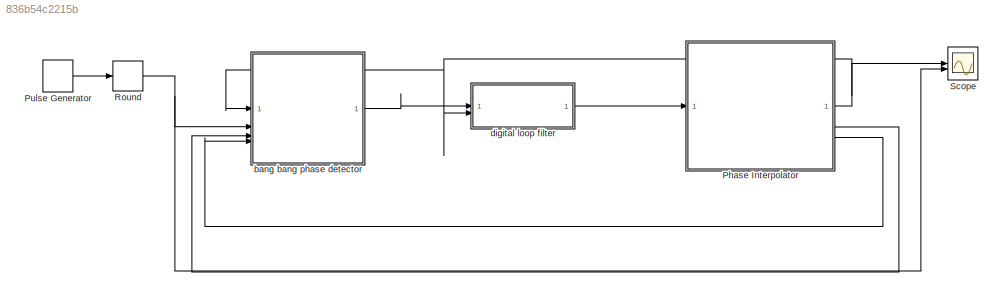
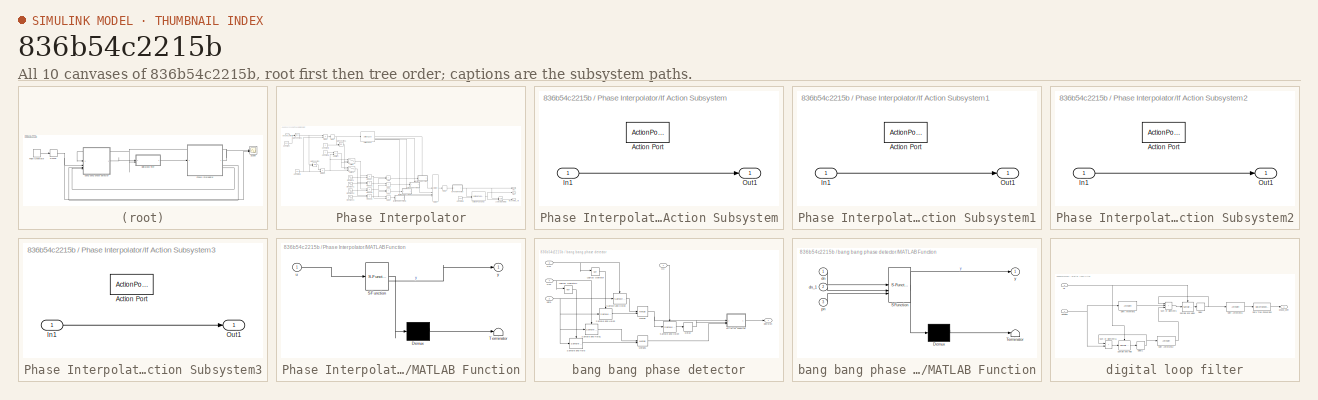
[diagram: thumbnail index - all 10 canvases of the model, root first then tree order]
MODEL slx_836b54c2215b
KIND model
CONFIG AbsTol = auto
CONFIG EnableMultiTasking = off
CONFIG FixedStep = auto
CONFIG MaxStep = auto
CONFIG MinStep = auto
CONFIG RelTol = 1e-3
CONFIG SampleTimeConstraint = Unconstrained
CONFIG SolverName = VariableStepAuto
CONFIG StartTime = 0.0
CONFIG StopTime = 4e-8
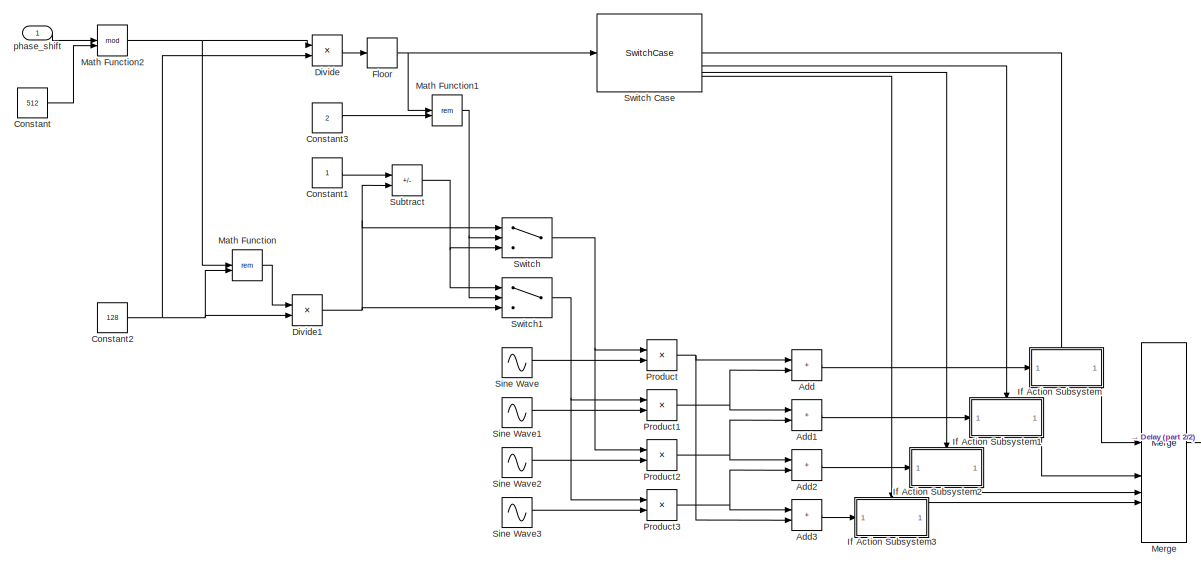
[diagram: Phase Interpolator - part 1/2, center side, full height]
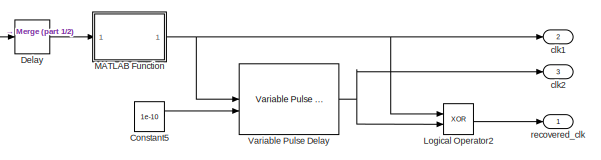
[diagram: Phase Interpolator - part 2/2, bottom right region]
BLOCK [SubSystem] Phase Interpolator
BLOCK [Sum] Phase Interpolator/Add
  IconShape = rectangular
BLOCK [Sum] Phase Interpolator/Add1
  IconShape = rectangular
BLOCK [Sum] Phase Interpolator/Add2
  IconShape = rectangular
BLOCK [Sum] Phase Interpolator/Add3
  IconShape = rectangular
BLOCK [Constant] Phase Interpolator/Constant
  Value = 512
BLOCK [Constant] Phase Interpolator/Constant1
BLOCK [Constant] Phase Interpolator/Constant2
  Value = 128
BLOCK [Constant] Phase Interpolator/Constant3
  Value = 2
BLOCK [Constant] Phase Interpolator/Constant5
  Value = 1e-10
BLOCK [Delay] Phase Interpolator/Delay
  DelayLength = 1
  InputPortMap = u0
BLOCK [Product] Phase Interpolator/Divide
  Inputs = */
BLOCK [Product] Phase Interpolator/Divide1
  Inputs = */
BLOCK [Rounding] Phase Interpolator/Floor
BLOCK [SubSystem] Phase Interpolator/If Action Subsystem
  TreatAsAtomicUnit = on
BLOCK [ActionPort] Phase Interpolator/If Action Subsystem/Action Port
  ActionPortLabel = case [ 0 ]:
BLOCK [Inport] Phase Interpolator/If Action Subsystem/In1
BLOCK [Outport] Phase Interpolator/If Action Subsystem/Out1
BLOCK [SubSystem] Phase Interpolator/If Action Subsystem1
  TreatAsAtomicUnit = on
BLOCK [ActionPort] Phase Interpolator/If Action Subsystem1/Action Port
  ActionPortLabel = case [ 1 ]:
BLOCK [Inport] Phase Interpolator/If Action Subsystem1/In1
BLOCK [Outport] Phase Interpolator/If Action Subsystem1/Out1
BLOCK [SubSystem] Phase Interpolator/If Action Subsystem2
  TreatAsAtomicUnit = on
BLOCK [ActionPort] Phase Interpolator/If Action Subsystem2/Action Port
  ActionPortLabel = case [ 2 ]:
BLOCK [Inport] Phase Interpolator/If Action Subsystem2/In1
BLOCK [Outport] Phase Interpolator/If Action Subsystem2/Out1
BLOCK [SubSystem] Phase Interpolator/If Action Subsystem3
  TreatAsAtomicUnit = on
BLOCK [ActionPort] Phase Interpolator/If Action Subsystem3/Action Port
  ActionPortLabel = case [ 3 ]:
BLOCK [Inport] Phase Interpolator/If Action Subsystem3/In1
BLOCK [Outport] Phase Interpolator/If Action Subsystem3/Out1
BLOCK [Logic] Phase Interpolator/Logical Operator2
  AllPortsSameDT = off
  Operator = XOR
  OutDataTypeStr = boolean
BLOCK [SubSystem] Phase Interpolator/MATLAB Function
  ErrorFcn = Stateflow.Translate.translate
  LibrarySourceBlock = simulink/User-Defined\nFunctions/MATLAB Function
  PermitHierarchicalResolution = ExplicitOnly
  SFBlockType = MATLAB Function
  TreatAsAtomicUnit = on
BLOCK [Demux] Phase Interpolator/MATLAB Function/ Demux 
  Outputs = 1
BLOCK [S-Function] Phase Interpolator/MATLAB Function/ SFunction 
  EnableBusSupport = on
  FunctionName = sf_sfun
  PortCounts = [1 2]
  SFcnIsStateOwnerBlock = off
  SFunctionDeploymentMode = off
  Tag = Stateflow S-Function 2
BLOCK [Terminator] Phase Interpolator/MATLAB Function/ Terminator 
BLOCK [Inport] Phase Interpolator/MATLAB Function/u
BLOCK [Outport] Phase Interpolator/MATLAB Function/y
BLOCK [Math] Phase Interpolator/Math Function
  Operator = rem
BLOCK [Math] Phase Interpolator/Math Function1
  Operator = rem
BLOCK [Math] Phase Interpolator/Math Function2
  Operator = mod
BLOCK [Merge] Phase Interpolator/Merge
  Inputs = 4
BLOCK [Product] Phase Interpolator/Product
BLOCK [Product] Phase Interpolator/Product1
BLOCK [Product] Phase Interpolator/Product2
BLOCK [Product] Phase Interpolator/Product3
BLOCK [Sin] Phase Interpolator/Sine Wave
  Frequency = pi*5e9
  SampleTime = 2e-12
BLOCK [Sin] Phase Interpolator/Sine Wave1
  Frequency = pi*5e9
  Phase = pi/2
  SampleTime = 2e-12
BLOCK [Sin] Phase Interpolator/Sine Wave2
  Frequency = pi*5e9
  Phase = pi
  SampleTime = 2e-12
BLOCK [Sin] Phase Interpolator/Sine Wave3
  Frequency = pi*5e9
  Phase = 3*pi/2
  SampleTime = 2e-12
BLOCK [Sum] Phase Interpolator/Subtract
  IconShape = rectangular
  Inputs = +-
BLOCK [Switch] Phase Interpolator/Switch
  Criteria = u2 ~= 0
  InputSameDT = off
  SaturateOnIntegerOverflow = off
BLOCK [SwitchCase] Phase Interpolator/Switch Case
  CaseConditions = {0,1,2,3}
  ShowDefaultCase = off
BLOCK [Switch] Phase Interpolator/Switch1
  Criteria = u2 ~= 0
  InputSameDT = off
  SaturateOnIntegerOverflow = off
BLOCK [Reference] Phase Interpolator/Variable Pulse Delay  REF=msbUtilities/Variable Pulse Delay
  SourceBlock = msbUtilities/Variable Pulse Delay
  SourceType = VariablePulseDelay
BLOCK [Outport] Phase Interpolator/clk1
  Port = 2
BLOCK [Outport] Phase Interpolator/clk2
  Port = 3
BLOCK [Inport] Phase Interpolator/phase_shift
BLOCK [Outport] Phase Interpolator/recovered_clk
BLOCK [DiscretePulseGenerator] Pulse Generator
  Period = 4e-10
  PhaseDelay = 1e-10
  PulseType = Time based
  PulseWidth = 50
BLOCK [Rounding] Round
  Operator = round
BLOCK [Scope] Scope
  Floating = off
  NumInputPorts = 2
  ScopeSpecificationString = Simulink.scopes.TimeScopeBlockCfg('CurrentConfiguration', extmgr.ConfigurationSet(extmgr.Configuration('Core','General UI',true),extmgr.Configuration('Core','Source UI',true),extmgr.Configuration('Sources','WiredSimulink',true),extmgr.Configuration('Visuals','Time Domain',true,'SerializedDisplays',{struct('MinYLimReal','-0.125','MaxYLimReal','1.125','YLabelReal','','MinYLimMag','0.00000','MaxYLimM...<+1336ch>
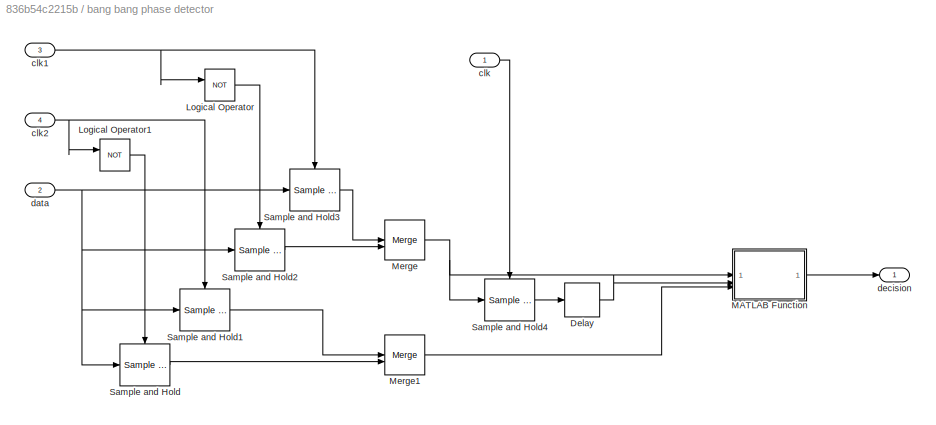
BLOCK [SubSystem] bang bang phase detector
BLOCK [Delay] bang bang phase detector/Delay
  DelayLength = 100
  InputPortMap = u0
BLOCK [Logic] bang bang phase detector/Logical Operator
  AllPortsSameDT = off
  Operator = NOT
  OutDataTypeStr = boolean
BLOCK [Logic] bang bang phase detector/Logical Operator1
  AllPortsSameDT = off
  Operator = NOT
  OutDataTypeStr = boolean
BLOCK [SubSystem] bang bang phase detector/MATLAB Function
  ErrorFcn = Stateflow.Translate.translate
  LibrarySourceBlock = simulink/User-Defined\nFunctions/MATLAB Function
  PermitHierarchicalResolution = ExplicitOnly
  SFBlockType = MATLAB Function
  TreatAsAtomicUnit = on
BLOCK [Demux] bang bang phase detector/MATLAB Function/ Demux 
  Outputs = 1
BLOCK [S-Function] bang bang phase detector/MATLAB Function/ SFunction 
  EnableBusSupport = on
  FunctionName = sf_sfun
  PortCounts = [3 2]
  SFcnIsStateOwnerBlock = off
  SFunctionDeploymentMode = off
  Tag = Stateflow S-Function 1
BLOCK [Terminator] bang bang phase detector/MATLAB Function/ Terminator 
BLOCK [Inport] bang bang phase detector/MATLAB Function/dn
BLOCK [Inport] bang bang phase detector/MATLAB Function/dn_1
  Port = 2
BLOCK [Inport] bang bang phase detector/MATLAB Function/pn
  Port = 3
BLOCK [Outport] bang bang phase detector/MATLAB Function/y
BLOCK [Merge] bang bang phase detector/Merge
BLOCK [Merge] bang bang phase detector/Merge1
BLOCK [Reference] bang bang phase detector/Sample and Hold  REF=dspsigops/Sample
and Hold
  LibrarySourceBlock = dsphdlsupportsigops/Sample\nand Hold
  SourceBlock = dspsigops/Sample\nand Hold
  SourceType = Sample and Hold
BLOCK [Reference] bang bang phase detector/Sample and Hold1  REF=dspsigops/Sample
and Hold
  LibrarySourceBlock = dsphdlsupportsigops/Sample\nand Hold
  SourceBlock = dspsigops/Sample\nand Hold
  SourceType = Sample and Hold
BLOCK [Reference] bang bang phase detector/Sample and Hold2  REF=dspsigops/Sample
and Hold
  LibrarySourceBlock = dsphdlsupportsigops/Sample\nand Hold
  SourceBlock = dspsigops/Sample\nand Hold
  SourceType = Sample and Hold
BLOCK [Reference] bang bang phase detector/Sample and Hold3  REF=dspsigops/Sample
and Hold
  LibrarySourceBlock = dsphdlsupportsigops/Sample\nand Hold
  SourceBlock = dspsigops/Sample\nand Hold
  SourceType = Sample and Hold
BLOCK [Reference] bang bang phase detector/Sample and Hold4  REF=dspsigops/Sample
and Hold
  LibrarySourceBlock = dsphdlsupportsigops/Sample\nand Hold
  SourceBlock = dspsigops/Sample\nand Hold
  SourceType = Sample and Hold
BLOCK [Inport] bang bang phase detector/clk
BLOCK [Inport] bang bang phase detector/clk1
  Port = 3
BLOCK [Inport] bang bang phase detector/clk2
  Port = 4
BLOCK [Inport] bang bang phase detector/data
  Port = 2
BLOCK [Outport] bang bang phase detector/decision
BLOCK [SubSystem] digital loop filter
BLOCK [DataTypeConversion] digital loop filter/Data Type Conversion
  RndMeth = Floor
  SaturateOnIntegerOverflow = off
BLOCK [Delay] digital loop filter/Delay
  DelayLength = 1
  InputPortMap = u0
BLOCK [Delay] digital loop filter/Delay1
  DelayLength = 1
  InputPortMap = u0
BLOCK [Reference] digital loop filter/Sample and Hold  REF=dspsigops/Sample
and Hold
  LibrarySourceBlock = dsphdlsupportsigops/Sample\nand Hold
  SourceBlock = dspsigops/Sample\nand Hold
  SourceType = Sample and Hold
BLOCK [Reference] digital loop filter/Sample and Hold1  REF=dspsigops/Sample
and Hold
  LibrarySourceBlock = dsphdlsupportsigops/Sample\nand Hold
  SourceBlock = dspsigops/Sample\nand Hold
  SourceType = Sample and Hold
BLOCK [ArithShift] digital loop filter/Shift Arithmetic
  BitShiftDirection = Left
  BitShiftNumber = 3
  InputPortMap = u0
BLOCK [ArithShift] digital loop filter/Shift Arithmetic1
  BitShiftDirection = Right
  BitShiftNumber = 6
  InputPortMap = u0
BLOCK [ArithShift] digital loop filter/Shift Arithmetic2
  BitShiftDirection = Right
  BitShiftNumber = 6
  InputPortMap = u0
BLOCK [Sum] digital loop filter/Sum of Elements
  IconShape = rectangular
  Inputs = +++
BLOCK [Sum] digital loop filter/Sum of Elements1
  IconShape = rectangular
BLOCK [Inport] digital loop filter/clk
  Port = 2
BLOCK [Inport] digital loop filter/decision
BLOCK [Outport] digital loop filter/phase_shift
LINE Phase Interpolator/Add1:1 -> Phase Interpolator/If Action Subsystem1:1
LINE Phase Interpolator/Add2:1 -> Phase Interpolator/If Action Subsystem2:1
LINE Phase Interpolator/Add3:1 -> Phase Interpolator/If Action Subsystem3:1
LINE Phase Interpolator/Add:1 -> Phase Interpolator/If Action Subsystem:1
LINE Phase Interpolator/Constant1:1 -> Phase Interpolator/Subtract:1
NET Phase Interpolator/Constant2:1 -> Phase Interpolator/Divide1:2, Phase Interpolator/Divide:2, Phase Interpolator/Math Function:2
LINE Phase Interpolator/Constant3:1 -> Phase Interpolator/Math Function1:2
LINE Phase Interpolator/Constant5:1 -> Phase Interpolator/Variable Pulse Delay:2
LINE Phase Interpolator/Constant:1 -> Phase Interpolator/Math Function2:2
LINE Phase Interpolator/Delay:1 -> Phase Interpolator/MATLAB Function:1
NET Phase Interpolator/Divide1:1 -> Phase Interpolator/Subtract:2, Phase Interpolator/Switch1:3, Phase Interpolator/Switch:1
LINE Phase Interpolator/Divide:1 -> Phase Interpolator/Floor:1
NET Phase Interpolator/Floor:1 -> Phase Interpolator/Math Function1:1, Phase Interpolator/Switch Case:1
LINE Phase Interpolator/If Action Subsystem/In1:1 -> Phase Interpolator/If Action Subsystem/Out1:1
LINE Phase Interpolator/If Action Subsystem1/In1:1 -> Phase Interpolator/If Action Subsystem1/Out1:1
LINE Phase Interpolator/If Action Subsystem1:1 -> Phase Interpolator/Merge:2
LINE Phase Interpolator/If Action Subsystem2/In1:1 -> Phase Interpolator/If Action Subsystem2/Out1:1
LINE Phase Interpolator/If Action Subsystem2:1 -> Phase Interpolator/Merge:3
LINE Phase Interpolator/If Action Subsystem3/In1:1 -> Phase Interpolator/If Action Subsystem3/Out1:1
LINE Phase Interpolator/If Action Subsystem3:1 -> Phase Interpolator/Merge:4
LINE Phase Interpolator/If Action Subsystem:1 -> Phase Interpolator/Merge:1
LINE Phase Interpolator/Logical Operator2:1 -> Phase Interpolator/recovered_clk:1
NET Phase Interpolator/MATLAB Function:1 -> Phase Interpolator/Logical Operator2:1, Phase Interpolator/Variable Pulse Delay:1, Phase Interpolator/clk1:1
NET Phase Interpolator/Math Function1:1 -> Phase Interpolator/Switch1:2, Phase Interpolator/Switch:2
NET Phase Interpolator/Math Function2:1 -> Phase Interpolator/Divide:1, Phase Interpolator/Math Function:1
LINE Phase Interpolator/Math Function:1 -> Phase Interpolator/Divide1:1
LINE Phase Interpolator/Merge:1 -> Phase Interpolator/Delay:1
NET Phase Interpolator/Product1:1 -> Phase Interpolator/Add1:1, Phase Interpolator/Add:2
NET Phase Interpolator/Product2:1 -> Phase Interpolator/Add1:2, Phase Interpolator/Add2:1
NET Phase Interpolator/Product3:1 -> Phase Interpolator/Add2:2, Phase Interpolator/Add3:1
NET Phase Interpolator/Product:1 -> Phase Interpolator/Add3:2, Phase Interpolator/Add:1
LINE Phase Interpolator/Sine Wave1:1 -> Phase Interpolator/Product1:2
LINE Phase Interpolator/Sine Wave2:1 -> Phase Interpolator/Product2:2
LINE Phase Interpolator/Sine Wave3:1 -> Phase Interpolator/Product3:2
LINE Phase Interpolator/Sine Wave:1 -> Phase Interpolator/Product:2
NET Phase Interpolator/Subtract:1 -> Phase Interpolator/Switch1:1, Phase Interpolator/Switch:3
LINE Phase Interpolator/Switch Case:1 -> Phase Interpolator/If Action Subsystem:ifaction
LINE Phase Interpolator/Switch Case:2 -> Phase Interpolator/If Action Subsystem1:ifaction
LINE Phase Interpolator/Switch Case:3 -> Phase Interpolator/If Action Subsystem2:ifaction
LINE Phase Interpolator/Switch Case:4 -> Phase Interpolator/If Action Subsystem3:ifaction
NET Phase Interpolator/Switch1:1 -> Phase Interpolator/Product1:1, Phase Interpolator/Product3:1
NET Phase Interpolator/Switch:1 -> Phase Interpolator/Product2:1, Phase Interpolator/Product:1
NET Phase Interpolator/Variable Pulse Delay:1 -> Phase Interpolator/Logical Operator2:2, Phase Interpolator/clk2:1
LINE Phase Interpolator/phase_shift:1 -> Phase Interpolator/Math Function2:1
NET Phase Interpolator:1 -> Scope:1, bang bang phase detector:1, digital loop filter:2
LINE Phase Interpolator:2 -> bang bang phase detector:3
LINE Phase Interpolator:3 -> bang bang phase detector:4
LINE Pulse Generator:1 -> Round:1
NET Round:1 -> Scope:2, bang bang phase detector:2
LINE bang bang phase detector/Delay:1 -> bang bang phase detector/MATLAB Function:2
LINE bang bang phase detector/Logical Operator1:1 -> bang bang phase detector/Sample and Hold:trigger
LINE bang bang phase detector/Logical Operator:1 -> bang bang phase detector/Sample and Hold2:trigger
LINE bang bang phase detector/MATLAB Function:1 -> bang bang phase detector/decision:1
LINE bang bang phase detector/Merge1:1 -> bang bang phase detector/MATLAB Function:3
NET bang bang phase detector/Merge:1 -> bang bang phase detector/MATLAB Function:1, bang bang phase detector/Sample and Hold4:1
LINE bang bang phase detector/Sample and Hold1:1 -> bang bang phase detector/Merge1:1
LINE bang bang phase detector/Sample and Hold2:1 -> bang bang phase detector/Merge:2
LINE bang bang phase detector/Sample and Hold3:1 -> bang bang phase detector/Merge:1
LINE bang bang phase detector/Sample and Hold4:1 -> bang bang phase detector/Delay:1
LINE bang bang phase detector/Sample and Hold:1 -> bang bang phase detector/Merge1:2
NET bang bang phase detector/clk1:1 -> bang bang phase detector/Logical Operator:1, bang bang phase detector/Sample and Hold3:trigger
NET bang bang phase detector/clk2:1 -> bang bang phase detector/Logical Operator1:1, bang bang phase detector/Sample and Hold1:trigger
LINE bang bang phase detector/clk:1 -> bang bang phase detector/Sample and Hold4:trigger
NET bang bang phase detector/data:1 -> bang bang phase detector/Sample and Hold1:1, bang bang phase detector/Sample and Hold2:1, bang bang phase detector/Sample and Hold3:1, bang bang phase detector/Sample and Hold:1
LINE bang bang phase detector:1 -> digital loop filter:1
LINE digital loop filter/Data Type Conversion:1 -> digital loop filter/phase_shift:1
NET digital loop filter/Delay1:1 -> digital loop filter/Shift Arithmetic2:1, digital loop filter/Sum of Elements1:1
NET digital loop filter/Delay:1 -> digital loop filter/Shift Arithmetic1:1, digital loop filter/Sum of Elements:1
LINE digital loop filter/Sample and Hold1:1 -> digital loop filter/Delay:1
LINE digital loop filter/Sample and Hold:1 -> digital loop filter/Delay1:1
LINE digital loop filter/Shift Arithmetic1:1 -> digital loop filter/Data Type Conversion:1
LINE digital loop filter/Shift Arithmetic2:1 -> digital loop filter/Sum of Elements:3
LINE digital loop filter/Shift Arithmetic:1 -> digital loop filter/Sum of Elements:2
LINE digital loop filter/Sum of Elements1:1 -> digital loop filter/Sample and Hold:1
LINE digital loop filter/Sum of Elements:1 -> digital loop filter/Sample and Hold1:1
NET digital loop filter/clk:1 -> digital loop filter/Sample and Hold1:trigger, digital loop filter/Sample and Hold:trigger
NET digital loop filter/decision:1 -> digital loop filter/Shift Arithmetic:1, digital loop filter/Sum of Elements1:2
LINE digital loop filter:1 -> Phase Interpolator:1
note: NET lines group one-source signal fan-out (src -> all destinations, sorted); 1:1 wires keep LINE
CHART Phase Interpolator/MATLAB Function states=1 transitions=1
  STATE_LABEL 'eML_blk_kernel()'
  STATE_LABEL 'SCRIPT:\nfunction y = fcn(u)\nif u > 0\n    y = 1;\nelse\n    y = 0;\nend\n'
CHART bang bang phase detector/MATLAB Function states=1 transitions=1
  STATE_LABEL 'eML_blk_kernel()'
  STATE_LABEL 'SCRIPT:\nfunction y = fcn(dn, dn_1, pn)\n\ny = 0;\nif dn == dn_1\n    y = 0;\nelseif pn == dn\n    y = 1;\nelseif pn == dn_1\n    y = -1;\nend\n'
CHART  states=0 transitions=0
CHART  states=0 transitions=0
